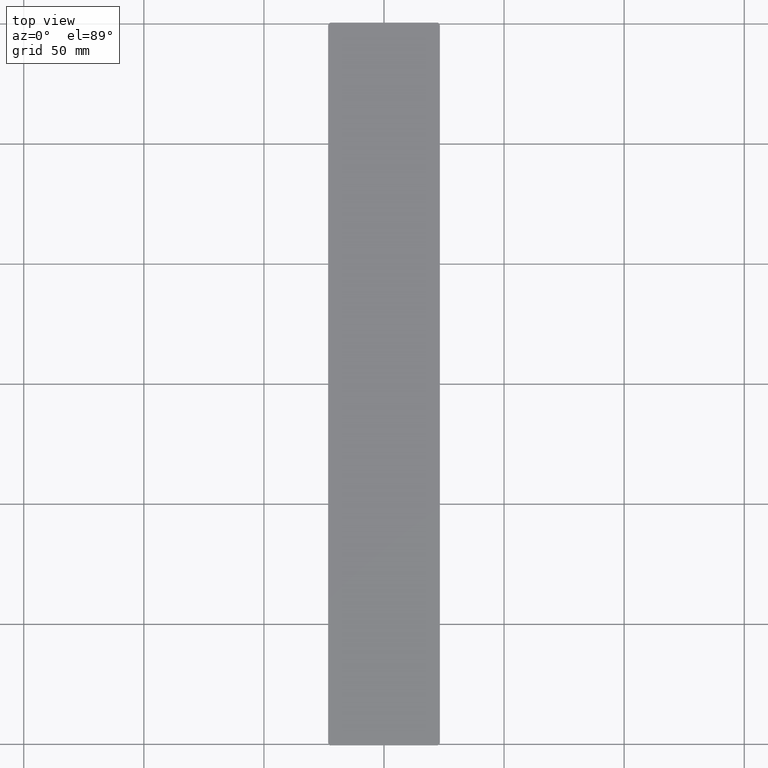
[diagram: clean part render]
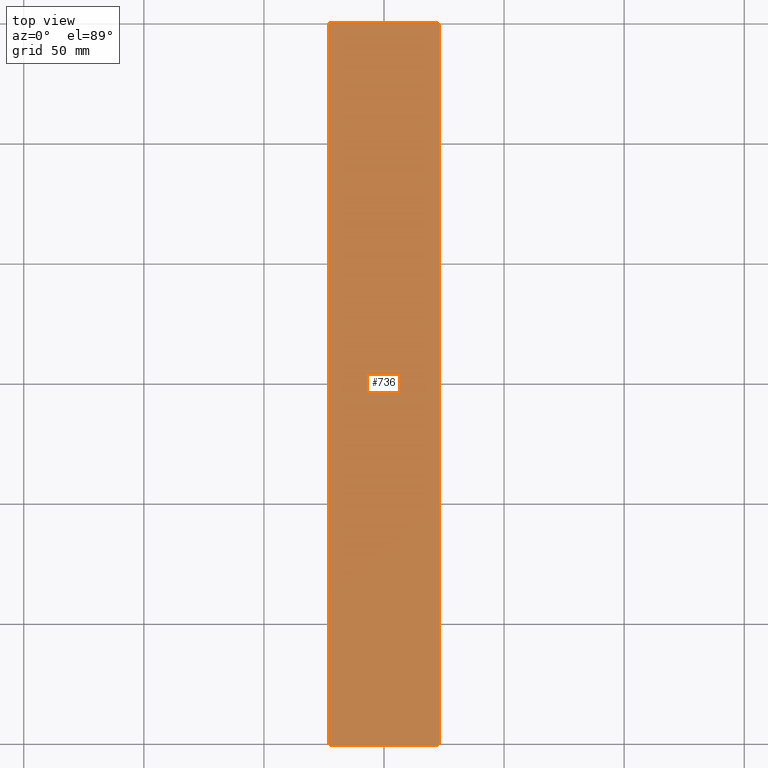
[diagram: same view with one face highlighted and labeled with its STEP entity id]
A machine part, top view. The second image highlights one B-rep face of the part: STEP entity #736.
In plain terms, the highlighted planar face has unit normal (-0, 0, 1).
Its self-contained STEP definition (entity closure, byte-faithful):
#281 = ORIENTED_EDGE ( 'NONE', *, *, #10626, .T. ) ;
#694 = DIRECTION ( 'NONE',  ( -0.0000000000000000000, 0.0000000000000000000, 1.000000000000000000 ) ) ;
#736 = ADVANCED_FACE ( 'NONE', ( #8141 ), #5074, .T. ) ;
#786 = VERTEX_POINT ( 'NONE', #1511 ) ;
#830 = EDGE_CURVE ( 'NONE', #13443, #3230, #1249, .T. ) ;
#990 = EDGE_CURVE ( 'NONE', #3950, #3884, #9450, .T. ) ;
#1087 = DIRECTION ( 'NONE',  ( -0.0000000000000000000, 0.0000000000000000000, 1.000000000000000000 ) ) ;
#1156 = LINE ( 'NONE', #8204, #3614 ) ;
#1249 = CIRCLE ( 'NONE', #10530, 1.199999999999999700 ) ;
#1511 = CARTESIAN_POINT ( 'NONE',  ( -23.24999999999998600, -149.2999999999999500, 1.500000000000000000 ) ) ;
#1708 = LINE ( 'NONE', #4704, #2689 ) ;
#2348 = LINE ( 'NONE', #6664, #2526 ) ;
#2356 = CARTESIAN_POINT ( 'NONE',  ( -22.05000000000002600, 150.5000000000000000, 1.500000000000000000 ) ) ;
#2431 = AXIS2_PLACEMENT_3D ( 'NONE', #12963, #6915, #10891 ) ;
#2526 = VECTOR ( 'NONE', #10875, 1000.000000000000000 ) ;
#2584 = DIRECTION ( 'NONE',  ( 1.000000000000000000, 0.0000000000000000000, 0.0000000000000000000 ) ) ;
#2689 = VECTOR ( 'NONE', #2584, 1000.000000000000000 ) ;
#3172 = CARTESIAN_POINT ( 'NONE',  ( 22.04999999999996200, 150.5000000000000000, 1.500000000000000000 ) ) ;
#3230 = VERTEX_POINT ( 'NONE', #12404 ) ;
#3284 = DIRECTION ( 'NONE',  ( 1.000000000000000000, 0.0000000000000000000, 0.0000000000000000000 ) ) ;
#3354 = VERTEX_POINT ( 'NONE', #10587 ) ;
#3516 = ORIENTED_EDGE ( 'NONE', *, *, #12242, .T. ) ;
#3614 = VECTOR ( 'NONE', #8248, 1000.000000000000000 ) ;
#3794 = CARTESIAN_POINT ( 'NONE',  ( 22.04999999999997600, 149.2999999999999800, 1.500000000000000000 ) ) ;
#3884 = VERTEX_POINT ( 'NONE', #4157 ) ;
#3950 = VERTEX_POINT ( 'NONE', #13499 ) ;
#4038 = EDGE_CURVE ( 'NONE', #11354, #3950, #12007, .T. ) ;
#4157 = CARTESIAN_POINT ( 'NONE',  ( 23.25000000000001400, -149.2999999999999500, 1.500000000000000000 ) ) ;
#4347 = ORIENTED_EDGE ( 'NONE', *, *, #6227, .F. ) ;
#4371 = ORIENTED_EDGE ( 'NONE', *, *, #6361, .F. ) ;
#4704 = CARTESIAN_POINT ( 'NONE',  ( -23.25000000000002500, 150.5000000000000000, 1.500000000000000000 ) ) ;
#4803 = DIRECTION ( 'NONE',  ( -0.0000000000000000000, 0.0000000000000000000, 1.000000000000000000 ) ) ;
#5074 = PLANE ( 'NONE',  #8209 ) ;
#5285 = CARTESIAN_POINT ( 'NONE',  ( 0.0000000000000000000, 0.0000000000000000000, 1.500000000000000000 ) ) ;
#5492 = EDGE_LOOP ( 'NONE', ( #4347, #9695, #281, #7205, #9762, #6886, #4371, #3516 ) ) ;
#6085 = CIRCLE ( 'NONE', #2431, 1.199999999999999700 ) ;
#6227 = EDGE_CURVE ( 'NONE', #13443, #10214, #1708, .T. ) ;
#6337 = DIRECTION ( 'NONE',  ( -0.0000000000000000000, 0.0000000000000000000, 1.000000000000000000 ) ) ;
#6361 = EDGE_CURVE ( 'NONE', #3354, #3884, #2348, .T. ) ;
#6664 = CARTESIAN_POINT ( 'NONE',  ( 23.24999999999997500, 150.5000000000000000, 1.500000000000000000 ) ) ;
#6886 = ORIENTED_EDGE ( 'NONE', *, *, #990, .T. ) ;
#6915 = DIRECTION ( 'NONE',  ( -0.0000000000000000000, 0.0000000000000000000, 1.000000000000000000 ) ) ;
#7205 = ORIENTED_EDGE ( 'NONE', *, *, #10929, .T. ) ;
#7381 = DIRECTION ( 'NONE',  ( 1.000000000000000000, 0.0000000000000000000, 0.0000000000000000000 ) ) ;
#8141 = FACE_OUTER_BOUND ( 'NONE', #5492, .T. ) ;
#8204 = CARTESIAN_POINT ( 'NONE',  ( -23.25000000000002500, 150.5000000000000000, 1.500000000000000000 ) ) ;
#8209 = AXIS2_PLACEMENT_3D ( 'NONE', #5285, #6337, #7381 ) ;
#8248 = DIRECTION ( 'NONE',  ( 1.267904201710623000E-016, -1.000000000000000000, 0.0000000000000000000 ) ) ;
#8953 = DIRECTION ( 'NONE',  ( 1.000000000000000000, 0.0000000000000000000, 0.0000000000000000000 ) ) ;
#9039 = CARTESIAN_POINT ( 'NONE',  ( -22.04999999999998600, -150.5000000000000000, 1.500000000000000000 ) ) ;
#9172 = CIRCLE ( 'NONE', #10572, 1.199999999999999700 ) ;
#9450 = CIRCLE ( 'NONE', #13130, 1.199999999999999700 ) ;
#9695 = ORIENTED_EDGE ( 'NONE', *, *, #830, .T. ) ;
#9729 = DIRECTION ( 'NONE',  ( 1.000000000000000000, 0.0000000000000000000, 0.0000000000000000000 ) ) ;
#9762 = ORIENTED_EDGE ( 'NONE', *, *, #4038, .T. ) ;
#9924 = CARTESIAN_POINT ( 'NONE',  ( -22.05000000000002600, 149.2999999999999800, 1.500000000000000000 ) ) ;
#10214 = VERTEX_POINT ( 'NONE', #3172 ) ;
#10421 = VECTOR ( 'NONE', #9729, 1000.000000000000000 ) ;
#10530 = AXIS2_PLACEMENT_3D ( 'NONE', #9924, #694, #12036 ) ;
#10572 = AXIS2_PLACEMENT_3D ( 'NONE', #3794, #4803, #8953 ) ;
#10587 = CARTESIAN_POINT ( 'NONE',  ( 23.24999999999997500, 149.2999999999999800, 1.500000000000000000 ) ) ;
#10626 = EDGE_CURVE ( 'NONE', #3230, #786, #1156, .T. ) ;
#10767 = CARTESIAN_POINT ( 'NONE',  ( -23.24999999999998600, -150.5000000000000000, 1.500000000000000000 ) ) ;
#10875 = DIRECTION ( 'NONE',  ( 1.267904201710623000E-016, -1.000000000000000000, 0.0000000000000000000 ) ) ;
#10891 = DIRECTION ( 'NONE',  ( 1.000000000000000000, 0.0000000000000000000, 0.0000000000000000000 ) ) ;
#10929 = EDGE_CURVE ( 'NONE', #786, #11354, #6085, .T. ) ;
#11354 = VERTEX_POINT ( 'NONE', #9039 ) ;
#12007 = LINE ( 'NONE', #10767, #10421 ) ;
#12036 = DIRECTION ( 'NONE',  ( 1.000000000000000000, 0.0000000000000000000, 0.0000000000000000000 ) ) ;
#12242 = EDGE_CURVE ( 'NONE', #3354, #10214, #9172, .T. ) ;
#12404 = CARTESIAN_POINT ( 'NONE',  ( -23.25000000000002500, 149.2999999999999800, 1.500000000000000000 ) ) ;
#12524 = CARTESIAN_POINT ( 'NONE',  ( 22.05000000000001500, -149.2999999999999500, 1.500000000000000000 ) ) ;
#12963 = CARTESIAN_POINT ( 'NONE',  ( -22.04999999999998600, -149.2999999999999800, 1.500000000000000000 ) ) ;
#13130 = AXIS2_PLACEMENT_3D ( 'NONE', #12524, #1087, #3284 ) ;
#13443 = VERTEX_POINT ( 'NONE', #2356 ) ;
#13499 = CARTESIAN_POINT ( 'NONE',  ( 22.05000000000000100, -150.5000000000000000, 1.500000000000000000 ) ) ;